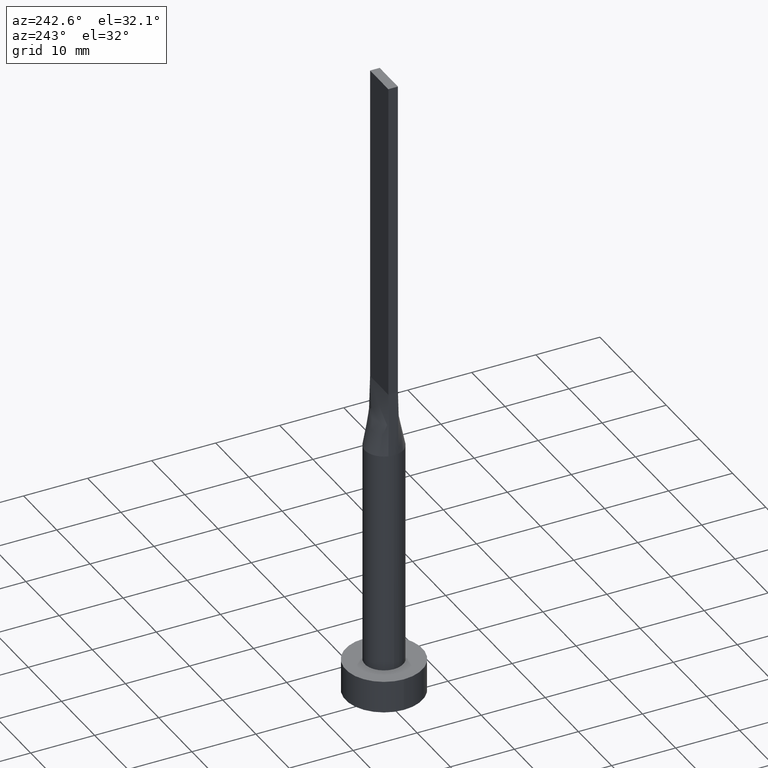
[diagram: clean part render]
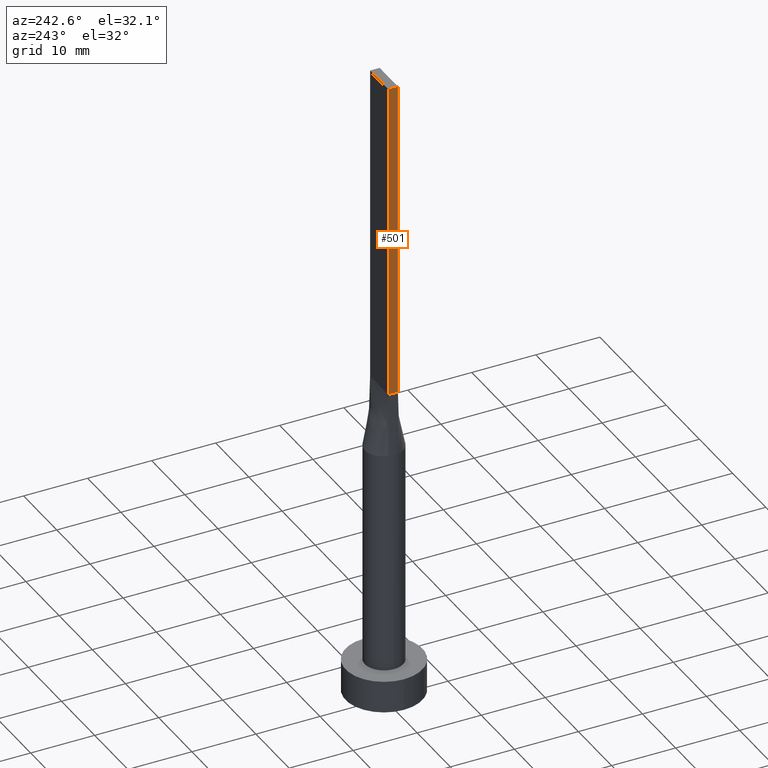
[diagram: same view with one face highlighted and labeled with its STEP entity id]
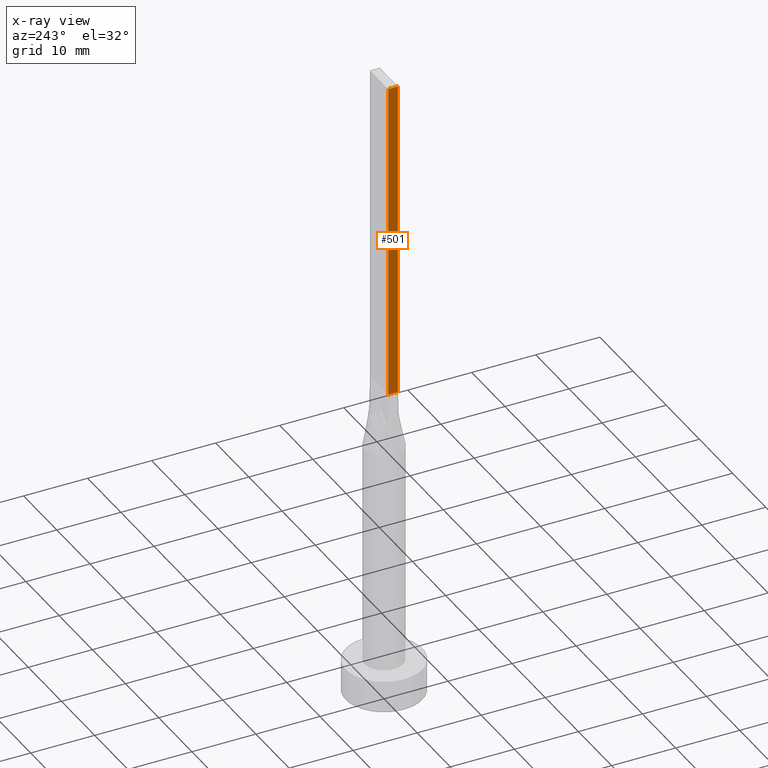
[diagram: x-ray of the same camera — body ghosted, the highlighted face saturated]
A machine part, auxiliary view. The second image highlights one B-rep face of the part: STEP entity #501.
The next image is the same camera in x-ray: the body ghosted, the highlighted face saturated — about 0% of this face is hidden behind the body in this view.
In plain terms, the highlighted planar face has unit normal (1, 0, -0).
Its self-contained STEP definition (entity closure, byte-faithful):
#1 = LINE ( 'NONE', #192, #541 ) ;
#17 = EDGE_CURVE ( 'NONE', #207, #441, #42, .T. ) ;
#29 = ORIENTED_EDGE ( 'NONE', *, *, #446, .T. ) ;
#37 = CARTESIAN_POINT ( 'NONE',  ( -2.750000000000000000, 0.7500000000000002220, 100.0000000000000000 ) ) ;
#42 = LINE ( 'NONE', #545, #222 ) ;
#59 = VERTEX_POINT ( 'NONE', #476 ) ;
#66 = DIRECTION ( 'NONE',  ( -0.000000000000000000, -0.000000000000000000, -1.000000000000000000 ) ) ;
#110 = LINE ( 'NONE', #296, #123 ) ;
#120 = EDGE_CURVE ( 'NONE', #59, #441, #110, .T. ) ;
#123 = VECTOR ( 'NONE', #66, 1000.000000000000000 ) ;
#184 = VECTOR ( 'NONE', #281, 1000.000000000000000 ) ;
#191 = ORIENTED_EDGE ( 'NONE', *, *, #120, .F. ) ;
#192 = CARTESIAN_POINT ( 'NONE',  ( -2.750000000000000000, 0.7500000000000002220, 100.0000000000000000 ) ) ;
#207 = VERTEX_POINT ( 'NONE', #344 ) ;
#222 = VECTOR ( 'NONE', #543, 1000.000000000000000 ) ;
#228 = ORIENTED_EDGE ( 'NONE', *, *, #507, .F. ) ;
#239 = LINE ( 'NONE', #549, #184 ) ;
#254 = VERTEX_POINT ( 'NONE', #37 ) ;
#270 = ORIENTED_EDGE ( 'NONE', *, *, #17, .T. ) ;
#281 = DIRECTION ( 'NONE',  ( 0.000000000000000000, -1.000000000000000000, 0.000000000000000000 ) ) ;
#296 = CARTESIAN_POINT ( 'NONE',  ( -2.750000000000000000, -0.7499999999999994449, 100.0000000000000000 ) ) ;
#330 = DIRECTION ( 'NONE',  ( -0.000000000000000000, 0.000000000000000000, -1.000000000000000000 ) ) ;
#344 = CARTESIAN_POINT ( 'NONE',  ( -2.750000000000000000, 0.7500000000000002220, 50.00000000000000000 ) ) ;
#359 = EDGE_LOOP ( 'NONE', ( #270, #191, #228, #29 ) ) ;
#372 = FACE_OUTER_BOUND ( 'NONE', #359, .T. ) ;
#407 = CARTESIAN_POINT ( 'NONE',  ( -2.750000000000000000, 0.7500000000000002220, 100.0000000000000000 ) ) ;
#413 = DIRECTION ( 'NONE',  ( 1.000000000000000000, 0.000000000000000000, -0.000000000000000000 ) ) ;
#441 = VERTEX_POINT ( 'NONE', #552 ) ;
#446 = EDGE_CURVE ( 'NONE', #254, #207, #1, .T. ) ;
#462 = AXIS2_PLACEMENT_3D ( 'NONE', #407, #413, #330 ) ;
#469 = DIRECTION ( 'NONE',  ( -0.000000000000000000, -0.000000000000000000, -1.000000000000000000 ) ) ;
#476 = CARTESIAN_POINT ( 'NONE',  ( -2.750000000000000000, -0.7499999999999994449, 100.0000000000000000 ) ) ;
#501 = ADVANCED_FACE ( 'NONE', ( #372 ), #502, .F. ) ;
#502 = PLANE ( 'NONE',  #462 ) ;
#507 = EDGE_CURVE ( 'NONE', #254, #59, #239, .T. ) ;
#541 = VECTOR ( 'NONE', #469, 1000.000000000000000 ) ;
#543 = DIRECTION ( 'NONE',  ( 0.000000000000000000, -1.000000000000000000, 0.000000000000000000 ) ) ;
#545 = CARTESIAN_POINT ( 'NONE',  ( -2.750000000000000000, 0.7500000000000002220, 50.00000000000000000 ) ) ;
#549 = CARTESIAN_POINT ( 'NONE',  ( -2.750000000000000000, 0.7500000000000002220, 100.0000000000000000 ) ) ;
#552 = CARTESIAN_POINT ( 'NONE',  ( -2.750000000000000000, -0.7499999999999994449, 50.00000000000000000 ) ) ;